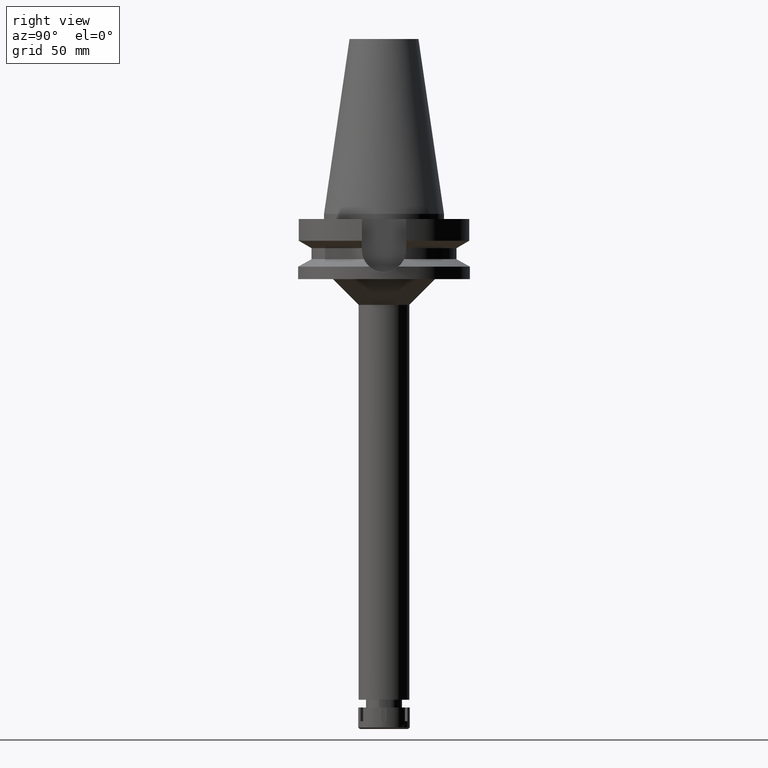
[diagram: clean part render]
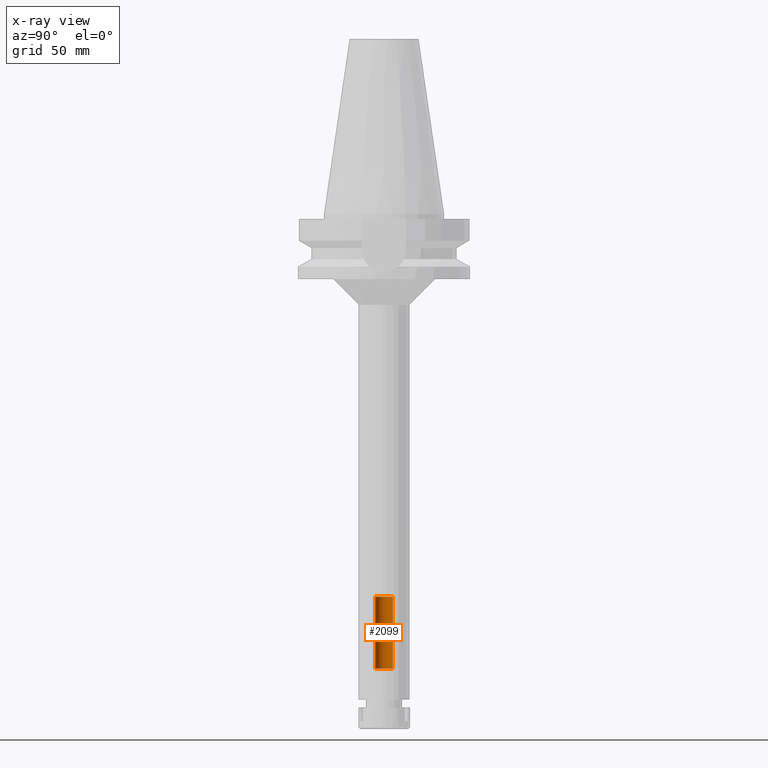
[diagram: x-ray — body ghosted, one internal face saturated and labeled with its STEP entity id]
A machine part, right view, then the same camera in x-ray: the body is ghosted and one INTERNAL B-rep face — a face not visible from any outside direction — is saturated and labeled: STEP entity #2099.
In plain terms, the highlighted cylindrical surface (edge-blend (fillet) strip) has radius 5.2 mm, axis along (0, 0, -1).
Its self-contained STEP definition (entity closure, byte-faithful):
#60 = EDGE_CURVE ( 'NONE', #3193, #1898, #131, .T. ) ;
#131 = LINE ( 'NONE', #1248, #3543 ) ;
#291 = VECTOR ( 'NONE', #1684, 1000.000000000000000 ) ;
#366 = EDGE_LOOP ( 'NONE', ( #1196, #715, #2959, #1506 ) ) ;
#484 = AXIS2_PLACEMENT_3D ( 'NONE', #1570, #3170, #2355 ) ;
#590 = CARTESIAN_POINT ( 'NONE',  ( 0.0000000000000000000, 5.200000000000000178, -265.0000000000000000 ) ) ;
#670 = CARTESIAN_POINT ( 'NONE',  ( 0.0000000000000000000, 2.713082518830999647E-14, 121.5399999999999920 ) ) ;
#715 = ORIENTED_EDGE ( 'NONE', *, *, #60, .F. ) ;
#867 = VERTEX_POINT ( 'NONE', #3470 ) ;
#970 = CYLINDRICAL_SURFACE ( 'NONE', #1900, 5.200000000000000178 ) ;
#1196 = ORIENTED_EDGE ( 'NONE', *, *, #3585, .T. ) ;
#1248 = CARTESIAN_POINT ( 'NONE',  ( 0.0000000000000000000, -5.200000000000000178, -265.0000000000000000 ) ) ;
#1506 = ORIENTED_EDGE ( 'NONE', *, *, #2884, .T. ) ;
#1570 = CARTESIAN_POINT ( 'NONE',  ( 0.0000000000000000000, 2.713082518830999647E-14, -223.0000000000000000 ) ) ;
#1640 = EDGE_CURVE ( 'NONE', #3193, #2706, #2979, .T. ) ;
#1684 = DIRECTION ( 'NONE',  ( 0.0000000000000000000, 0.0000000000000000000, 1.000000000000000000 ) ) ;
#1715 = DIRECTION ( 'NONE',  ( 0.0000000000000000000, 0.0000000000000000000, -1.000000000000000000 ) ) ;
#1898 = VERTEX_POINT ( 'NONE', #3001 ) ;
#1900 = AXIS2_PLACEMENT_3D ( 'NONE', #670, #2100, #3184 ) ;
#1989 = AXIS2_PLACEMENT_3D ( 'NONE', #3104, #1715, #3415 ) ;
#2099 = ADVANCED_FACE ( 'NONE', ( #2120 ), #970, .F. ) ;
#2100 = DIRECTION ( 'NONE',  ( 0.0000000000000000000, 0.0000000000000000000, -1.000000000000000000 ) ) ;
#2114 = CARTESIAN_POINT ( 'NONE',  ( 0.0000000000000000000, 5.200000000000000178, -265.0000000000000000 ) ) ;
#2120 = FACE_OUTER_BOUND ( 'NONE', #366, .T. ) ;
#2355 = DIRECTION ( 'NONE',  ( 0.0000000000000000000, 1.000000000000000000, 0.0000000000000000000 ) ) ;
#2359 = DIRECTION ( 'NONE',  ( 0.0000000000000000000, 0.0000000000000000000, 1.000000000000000000 ) ) ;
#2503 = CIRCLE ( 'NONE', #484, 5.200000000000000178 ) ;
#2562 = LINE ( 'NONE', #590, #291 ) ;
#2706 = VERTEX_POINT ( 'NONE', #2114 ) ;
#2884 = EDGE_CURVE ( 'NONE', #2706, #867, #2562, .T. ) ;
#2959 = ORIENTED_EDGE ( 'NONE', *, *, #1640, .T. ) ;
#2979 = CIRCLE ( 'NONE', #1989, 5.200000000000000178 ) ;
#3001 = CARTESIAN_POINT ( 'NONE',  ( 0.0000000000000000000, -5.200000000000000178, -223.0000000000000000 ) ) ;
#3104 = CARTESIAN_POINT ( 'NONE',  ( 0.0000000000000000000, 2.713082518830999647E-14, -265.0000000000000000 ) ) ;
#3170 = DIRECTION ( 'NONE',  ( 0.0000000000000000000, 0.0000000000000000000, 1.000000000000000000 ) ) ;
#3184 = DIRECTION ( 'NONE',  ( 0.0000000000000000000, -1.000000000000000000, 0.0000000000000000000 ) ) ;
#3193 = VERTEX_POINT ( 'NONE', #3265 ) ;
#3265 = CARTESIAN_POINT ( 'NONE',  ( 0.0000000000000000000, -5.200000000000000178, -265.0000000000000000 ) ) ;
#3415 = DIRECTION ( 'NONE',  ( 0.0000000000000000000, -1.000000000000000000, 0.0000000000000000000 ) ) ;
#3470 = CARTESIAN_POINT ( 'NONE',  ( 0.0000000000000000000, 5.200000000000000178, -223.0000000000000000 ) ) ;
#3543 = VECTOR ( 'NONE', #2359, 1000.000000000000000 ) ;
#3585 = EDGE_CURVE ( 'NONE', #867, #1898, #2503, .T. ) ;